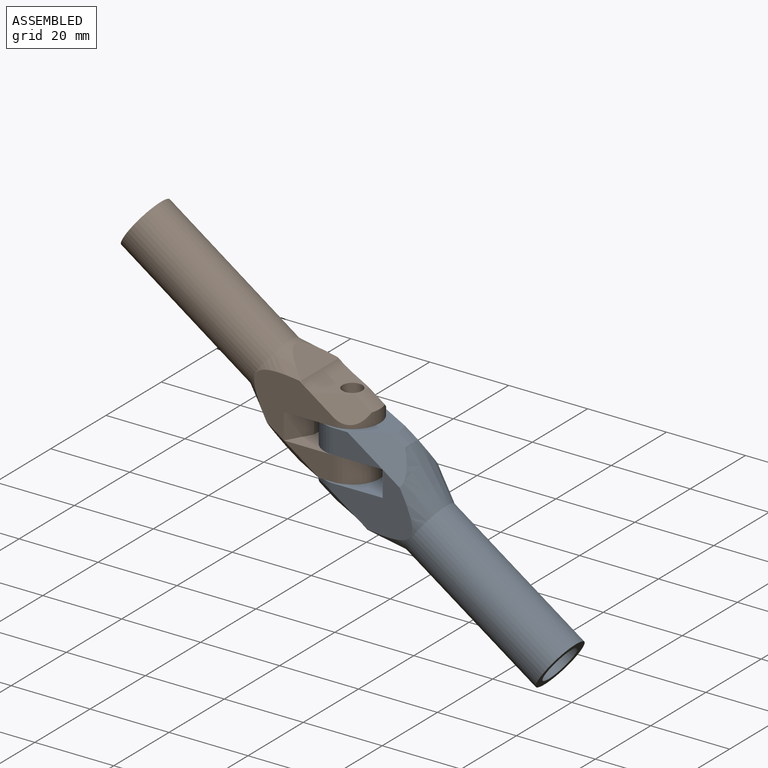
[diagram: assembled view]
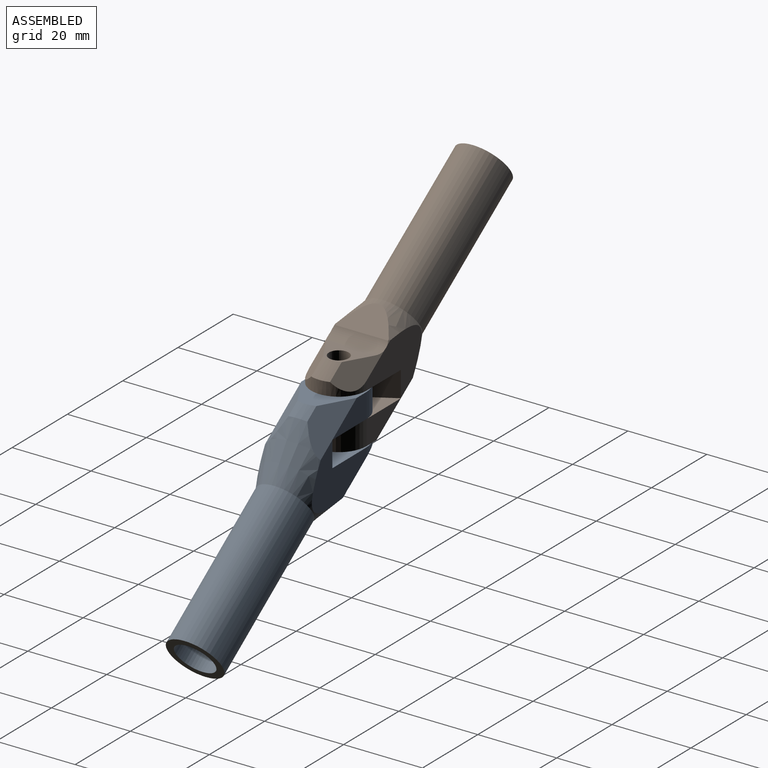
[diagram: assembled view, second angle]
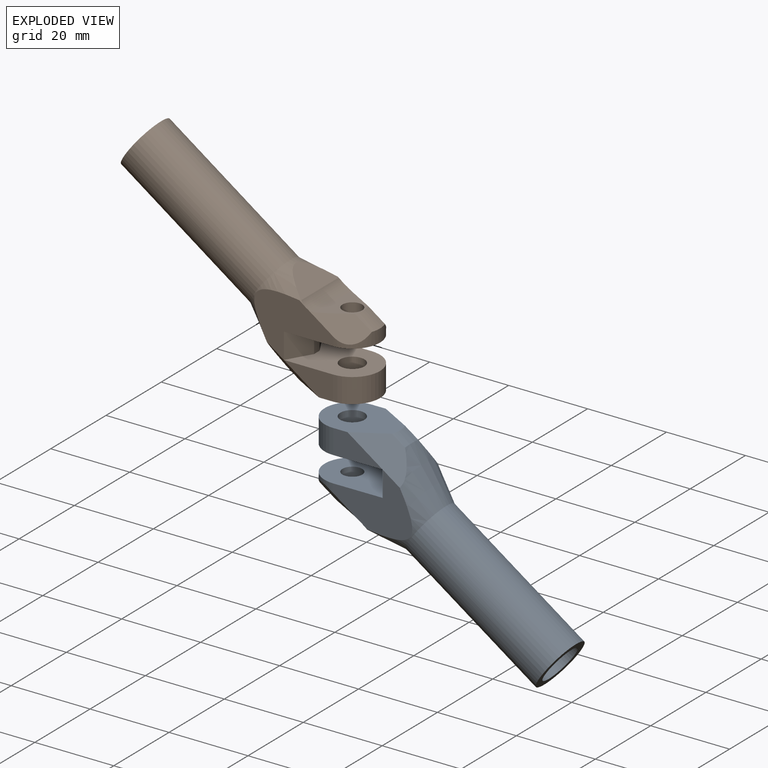
[diagram: exploded view]
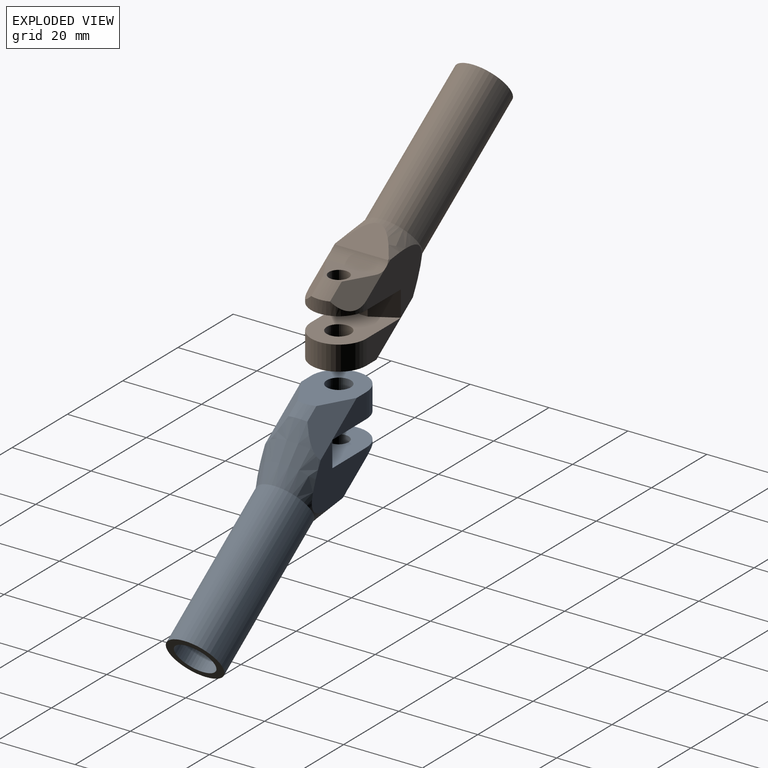
[diagram: exploded view, second angle]
ASSEMBLY  parts=2 mates=2
PART A: 32 faces, bbox 63.4x24.1x48.8 mm
  f0: plane 12.96x5.77mm, normal (0.41,0.71,0.58), area 51.7mm2, adj f4,f8,f23,f24,f28
  f1: plane 12.96x5.77mm, normal (0.41,-0.71,0.58), area 51.7mm2, adj f5,f8,f23,f24,f28
  f2: plane 19.46x14mm, normal (0,0,-1), area 204.1mm2, adj f4,f5,f21,f25,f26,f28,f31
  f3: plane 19.46x14mm, normal (0,0,1), area 194.5mm2, adj f16,f17,f19,f20,f21,f25,f26,f27
  f4: plane 19.96x15.21mm, normal (0,1,0), area 161.5mm2, adj f0,f2,f6,f15,f17,f23,f26,f28
  f5: plane 19.96x15.21mm, normal (0,-1,0), area 161.5mm2, adj f1,f2,f7,f15,f16,f23,f25,f28
  f6: plane 1.09x0.97mm, normal (0.41,0.71,0.58), area 0.3mm2, adj f4,f15,f23,f29
  f7: plane 1.09x0.97mm, normal (0.41,-0.71,0.58), area 0.3mm2, adj f5,f15,f23,f29
  f8: cylinder r=12mm len=4.76mm, axis (-0.82,0,0.57), area 24.7mm2, adj f0,f1,f24,f28
  f9: cone r=0mm half-angle=59deg, axis (-0.82,0,0.57), area 58.6mm2, adj f10
  f10: cylinder r=4mm len=12.78mm, axis (-0.82,0,0.57), area 251.3mm2, adj f9,f11
  f11: cone r=0mm half-angle=59deg, axis (-0.82,0,0.57), area 33mm2, adj f10,f12
  f12: cylinder r=5mm len=34.41mm, axis (-0.82,0,0.57), area 1099.6mm2, adj f11,f13
  f13: plane 13.8x11.3mm, normal (-0.82,0,0.57), area 71mm2, adj f12,f14
  f14: cylinder r=6.9mm len=40.68mm, axis (-0.82,0,0.57), area 1734.2mm2, adj f13,f15
  f15: cone r=6.9mm half-angle=20deg, axis (0.82,0,-0.57), area 286.3mm2, adj f4,f5,f6,f7,f14,f16,f17,f18
  f16: plane 13.52x9.24mm, normal (-0.41,-0.71,-0.58), area 71mm2, adj f3,f5,f15,f18,f20,f22,f25
  f17: plane 13.52x9.24mm, normal (-0.41,0.71,-0.58), area 71mm2, adj f3,f4,f15,f18,f19,f22,f26
  f18: cylinder r=12mm len=4.76mm, axis (-0.82,0,0.57), area 18.1mm2, adj f15,f16,f17,f22
  f19: plane 12.45x6.2mm, normal (0,1,0), area 49.8mm2, adj f3,f17,f22,f27
  f20: plane 12.45x6.2mm, normal (0,-1,0), area 49.8mm2, adj f3,f16,f22,f27
  f21: plane 6.5x2mm, normal (1,0,0), area 13mm2, adj f2,f3,f25,f26
  f22: plane 19.07x14mm, normal (0,0,-1), area 175mm2, adj f16,f17,f18,f19,f20,f27,f30
  f23: cylinder r=4.7mm len=14mm, axis (0,-1,0), area 62.5mm2, adj f0,f1,f4,f5,f6,f7,f24,f29
  f24: plane 12.41x7.08mm, normal (0,0,1), area 38.9mm2, adj f0,f1,f8,f23,f31
  f25: plane 6.5x6mm, normal (0.87,-0.5,0), area 45mm2, adj f2,f3,f5,f16,f21
  f26: plane 6.5x6mm, normal (0.87,0.5,0), area 45mm2, adj f2,f3,f4,f17,f21
  f27: cylinder r=7mm len=14mm, axis (0,0,-1), area 136.3mm2, adj f3,f19,f20,f22
  f28: cylinder r=7mm len=14mm, axis (0,0,-1), area 42.4mm2, adj f0,f1,f2,f4,f5,f8
  f29: plane 13.5x6.11mm, normal (0.57,0,0.82), area 66.4mm2, adj f6,f7,f15,f23
  f30: cylinder r=3.05mm len=6.2mm, axis (0,0,-1), area 118.8mm2, adj f3,f22
  f31: cylinder r=2.5mm len=6.2mm, axis (0,0,-1), area 97.4mm2, adj f2,f24
PART B: same geometry as A
PLACE A rot(axis=(0,-1,0),180deg) t=(24.49,-0.06,-18.37)mm
PLACE B t=(24.49,-0.06,-18.37)mm fixed
MATE planar B.f27 <-> A.f27  axis (0,0,1) through (24.49,-0.06,-18.37)mm
MATE cylindrical A.f30 <-> B.f30  axis (0,0,1) through (24.49,-0.06,-12.17)mm
